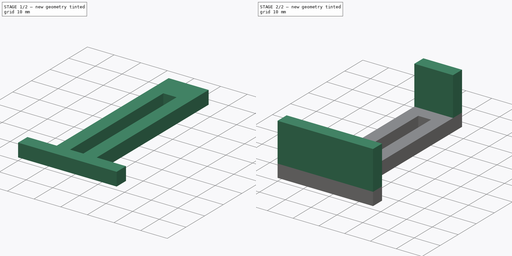
[diagram: build sequence overview — one tinted view per stage of 2, left to right]
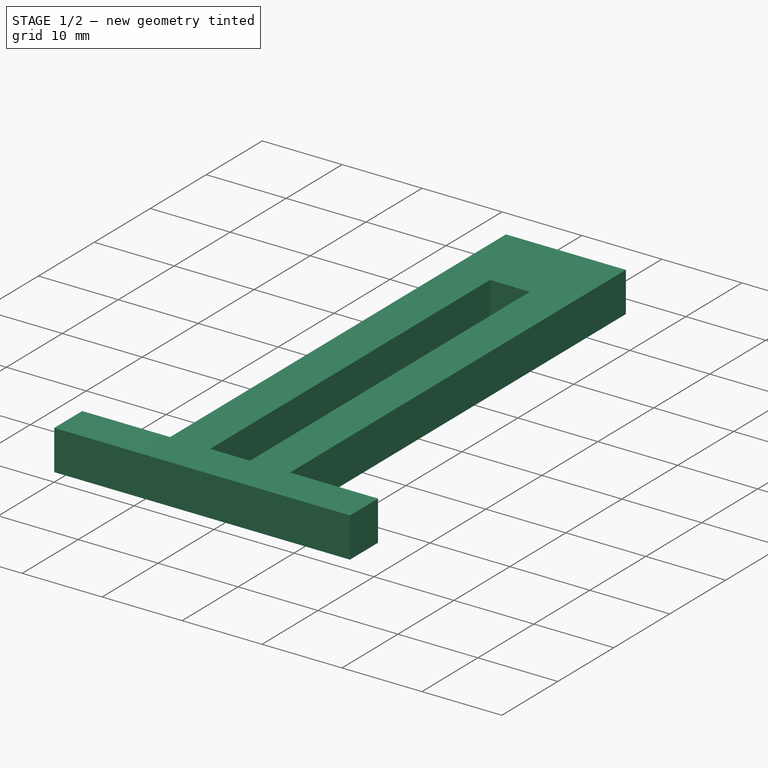
[diagram: stage 1 of 2 — iso view after this stage's code; geometry added in this stage tinted green]
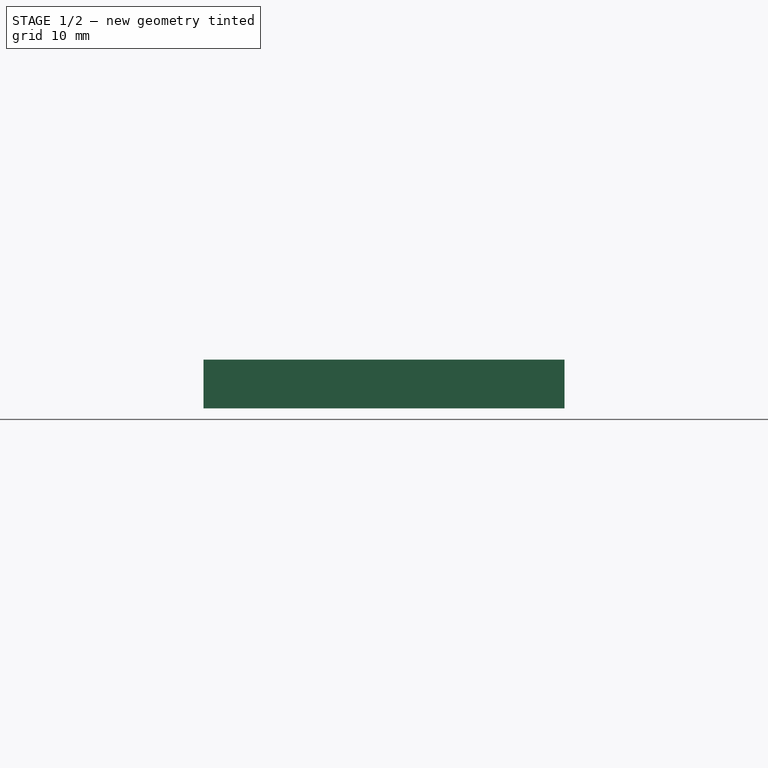
[diagram: stage 1 of 2 — front view after this stage's code; geometry added in this stage tinted green]
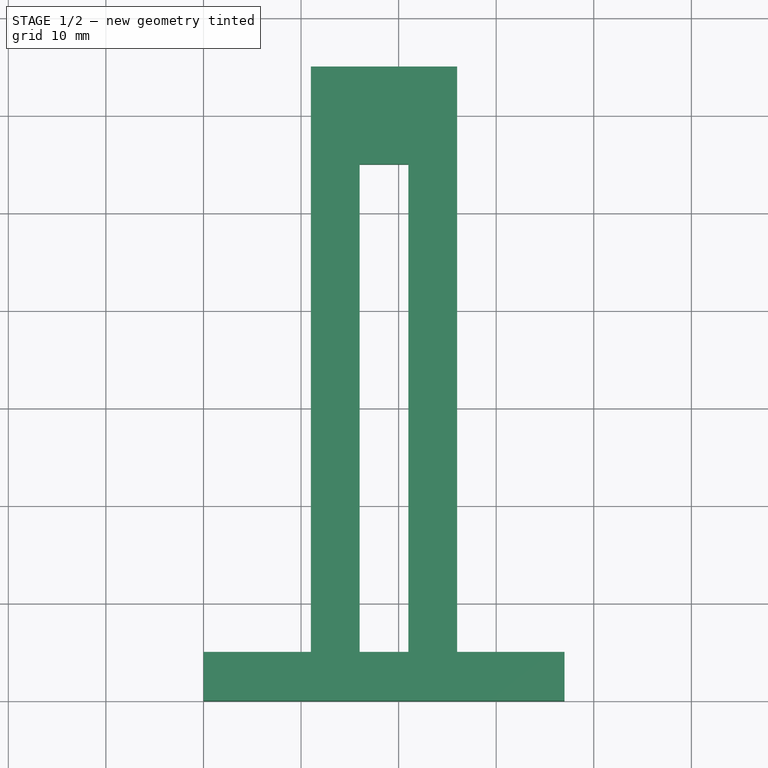
[diagram: stage 1 of 2 — top view after this stage's code; geometry added in this stage tinted green]
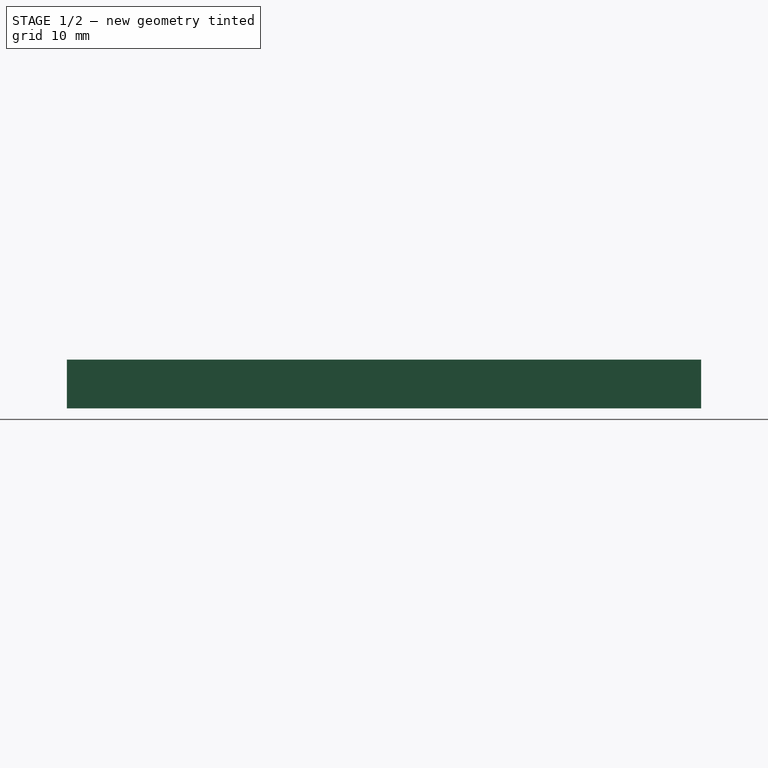
[diagram: stage 1 of 2 — right view after this stage's code; geometry added in this stage tinted green]
FCSTD DOCUMENT  (FreeCAD 0.20R29410 (Git))
Label: hc-05-holder
License: All rights reserved
LicenseURL: http://en.wikipedia.org/wiki/All_rights_reserved
objects: Sketcher::SketchObject×2, PartDesign::Pad×2, PartDesign::Body×1
note: 7 computed .brp shape members not serialized (recipe doc carries the construction recipe); baked Part::Feature solids carry a one-line shape summary decoded from their .brp

FEATURE [Sketcher::SketchObject] Sketch
  FullyConstrained = true
  MapMode = 5
  Support = -> [XY_Plane]
  sketch-geometry (12):
    g0: LineSegment StartX=0 StartY=5 StartZ=0 EndX=0 EndY=0 EndZ=0
    g1: LineSegment StartX=0 StartY=0 StartZ=0 EndX=37 EndY=0 EndZ=0
    g2: LineSegment StartX=37 StartY=0 StartZ=0 EndX=37 EndY=5 EndZ=0
    g3: LineSegment StartX=37 StartY=5 StartZ=0 EndX=26 EndY=5 EndZ=0
    g4: LineSegment StartX=26 StartY=5 StartZ=0 EndX=26 EndY=65 EndZ=0
    g5: LineSegment StartX=26 StartY=65 StartZ=0 EndX=11 EndY=65 EndZ=0
    g6: LineSegment StartX=11 StartY=65 StartZ=0 EndX=11 EndY=5 EndZ=0
    g7: LineSegment StartX=11 StartY=5 StartZ=0 EndX=0 EndY=5 EndZ=0
    g8: LineSegment StartX=16 StartY=5 StartZ=0 EndX=21 EndY=5 EndZ=0
    g9: LineSegment StartX=21 StartY=5 StartZ=0 EndX=21 EndY=55 EndZ=0
    g10: LineSegment StartX=21 StartY=55 StartZ=0 EndX=16.0001 EndY=55 EndZ=0
    g11: LineSegment StartX=16.0001 StartY=55 StartZ=0 EndX=16 EndY=5 EndZ=0
  constraints (35):
    c: Vertical(g0)
    c: Coincident(g0,g1)
    c: Horizontal(g1)
    c: Coincident(g1,g2)
    c: Vertical(g2)
    c: Coincident(g2,g3)
    c: Horizontal(g3)
    c: Coincident(g3,g4)
    c: Vertical(g4)
    c: Coincident(g4,g5)
    c: Horizontal(g5)
    c: Coincident(g5,g6)
    c: Vertical(g6)
    c: Coincident(g6,g7)
    c: Coincident(g7,g0)
    c: Horizontal(g7)
    c: DistanceY(g0,g0) = 5
    c: DistanceX(g1,g1) = 37
    c: Horizontal(g8)
    c: Coincident(g8,g9)
    c: Vertical(g9)
    c: Coincident(g9,g10)
    c: Horizontal(g10)
    c: Coincident(g10,g11)
    c: Coincident(g11,g8)
    c: Equal(g11,g9)
    c: Equal(g2,g0)
    c: DistanceX(g8,g8) = 5
    c: DistanceX(g6,g8) = 5
    c: DistanceX(g8,g3) = 5
    c: DistanceY(g3,g8) = 0
    c: DistanceY(g10,g5) = 10
    c: DistanceX(g7,g7) = 11
    c: Coincident(g-1,g0)
    c: DistanceY(g4,g4) = 60
FEATURE [PartDesign::Pad] Pad
  Direction = (0,0,1)
  Length = 5
  Length2 = 10
  Profile = -> Sketch
  ReferenceAxis = -> Sketch [N_Axis]
  Type = 0
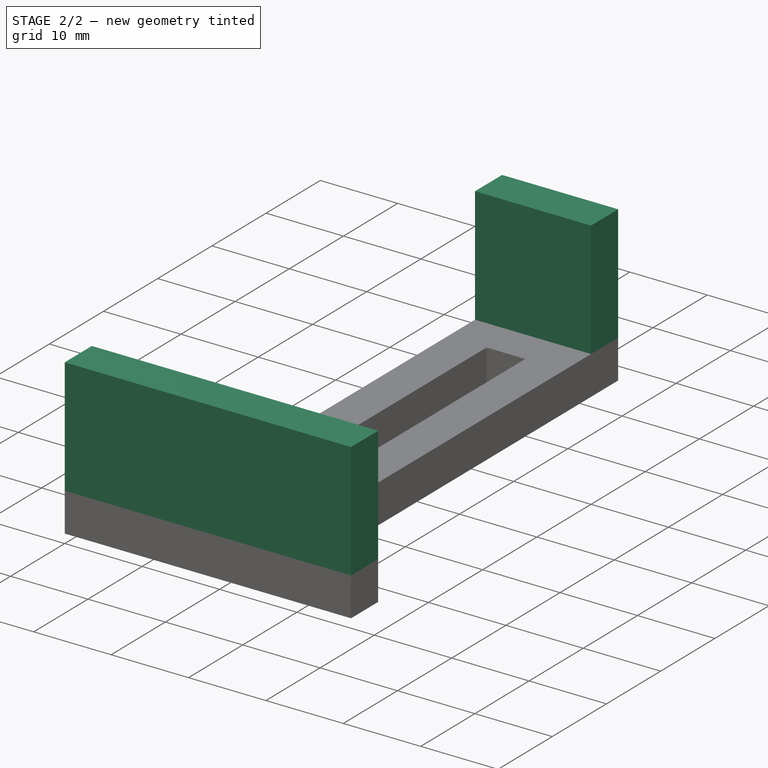
[diagram: stage 2 of 2 — iso view after this stage's code; geometry added in this stage tinted green]
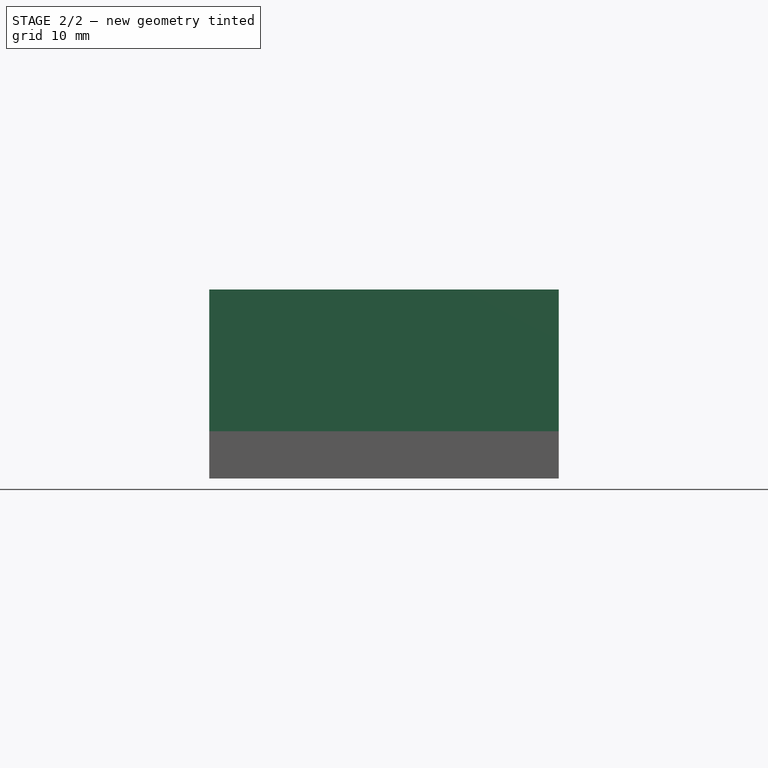
[diagram: stage 2 of 2 — front view after this stage's code; geometry added in this stage tinted green]
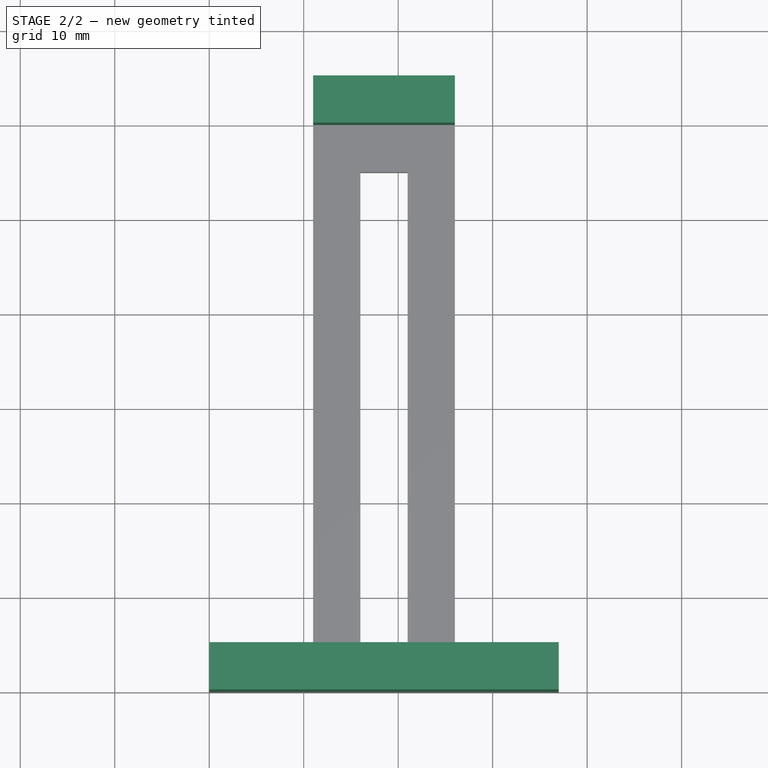
[diagram: stage 2 of 2 — top view after this stage's code; geometry added in this stage tinted green]
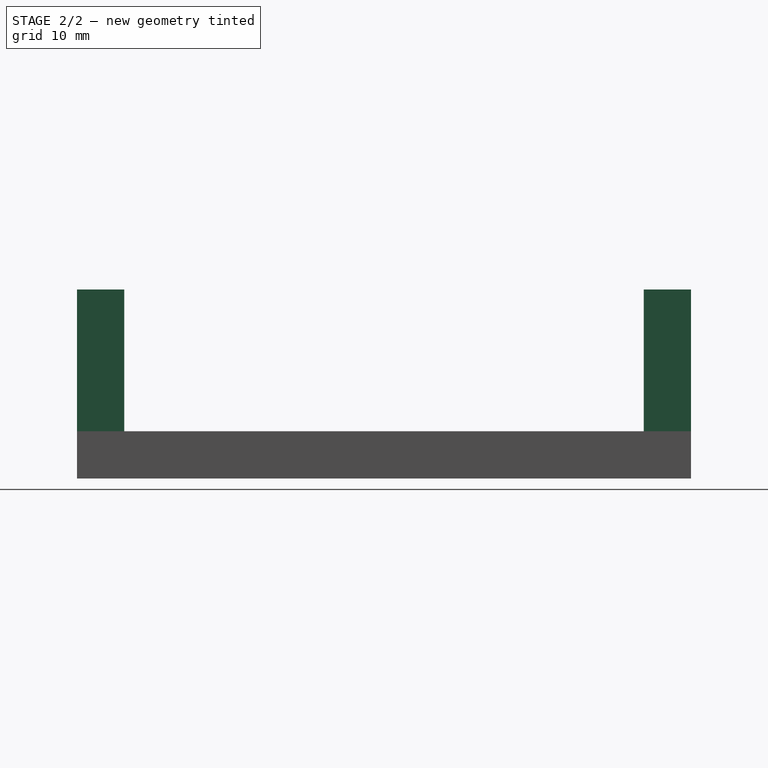
[diagram: stage 2 of 2 — right view after this stage's code; geometry added in this stage tinted green]
FEATURE [Sketcher::SketchObject] Sketch001
  FullyConstrained = true
  MapMode = 5
  Support = -> [XY_Plane]
  sketch-geometry (8):
    g0: LineSegment StartX=0 StartY=0 StartZ=0 EndX=0 EndY=5 EndZ=0
    g1: LineSegment StartX=0 StartY=5 StartZ=0 EndX=37 EndY=5 EndZ=0
    g2: LineSegment StartX=37 StartY=5 StartZ=0 EndX=37 EndY=0 EndZ=0
    g3: LineSegment StartX=37 StartY=0 StartZ=0 EndX=0 EndY=0 EndZ=0
    g4: LineSegment StartX=11 StartY=65 StartZ=0 EndX=11 EndY=60 EndZ=0
    g5: LineSegment StartX=11 StartY=60 StartZ=0 EndX=26 EndY=60 EndZ=0
    g6: LineSegment StartX=26 StartY=60 StartZ=0 EndX=26 EndY=65 EndZ=0
    g7: LineSegment StartX=26 StartY=65 StartZ=0 EndX=11 EndY=65 EndZ=0
  constraints (23):
    c: Coincident(g-1,g0)
    c: PointOnObject(g0,g-2)
    c: Coincident(g0,g1)
    c: Horizontal(g1)
    c: Coincident(g1,g2)
    c: Vertical(g2)
    c: Coincident(g2,g3)
    c: Coincident(g3,g0)
    c: Horizontal(g3)
    c: DistanceY(g0,g0) = 5
    c: DistanceX(g3,g3) = 37
    c: Vertical(g4)
    c: Coincident(g4,g5)
    c: Horizontal(g5)
    c: Coincident(g5,g6)
    c: Vertical(g6)
    c: Coincident(g6,g7)
    c: Coincident(g7,g4)
    c: Horizontal(g7)
    c: DistanceY(g4,g4) = 5
    c: DistanceY(g0,g4) = 55
    c: DistanceX(g5,g5) = 15
    c: DistanceX(g0,g4) = 11
FEATURE [PartDesign::Pad] Pad001
  BaseFeature = -> Pad
  Direction = (0,0,1)
  Length = 20
  Length2 = 10
  Profile = -> Sketch001
  ReferenceAxis = -> Sketch001 [N_Axis]
  Type = 0
FEATURE [PartDesign::Body] Body
  Group = -> [Sketch,Pad,Sketch001,Pad001]
  Origin = -> Origin
  Tip = -> Pad001
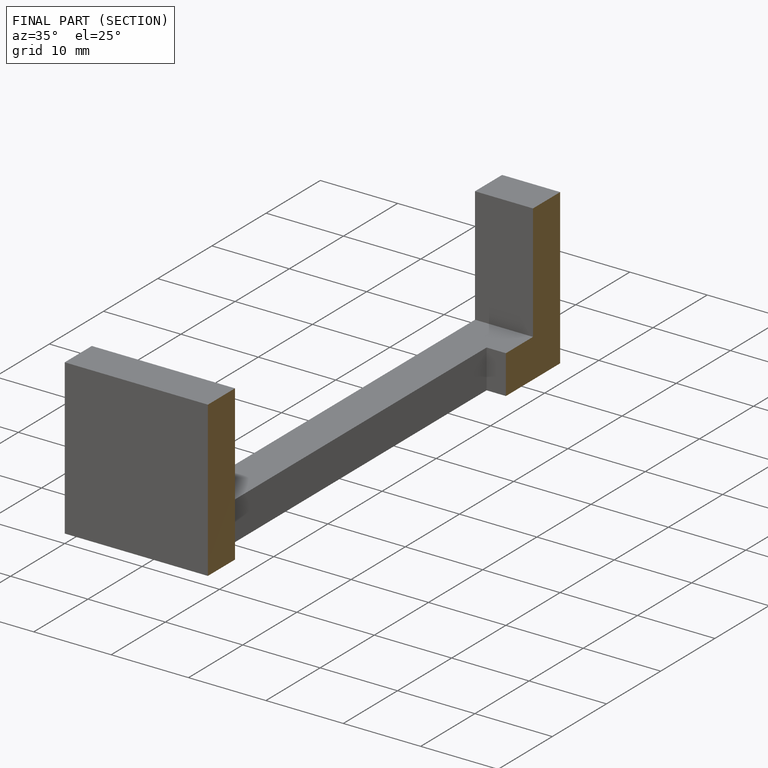
[diagram: finished part — half-section view (interior)]
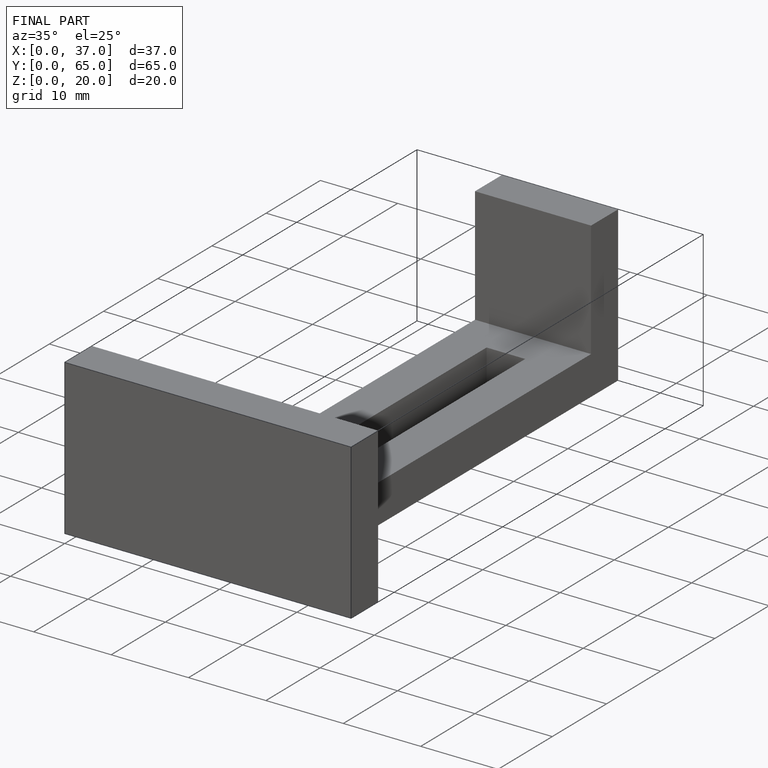
[diagram: finished part — iso view with bounding-box wireframe]
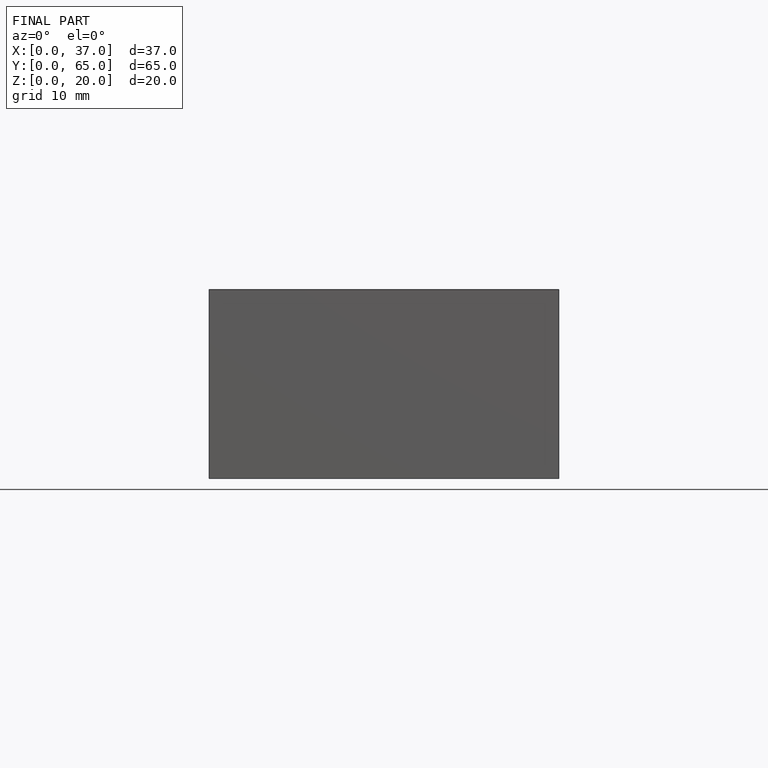
[diagram: finished part — front view with bounding-box wireframe]
